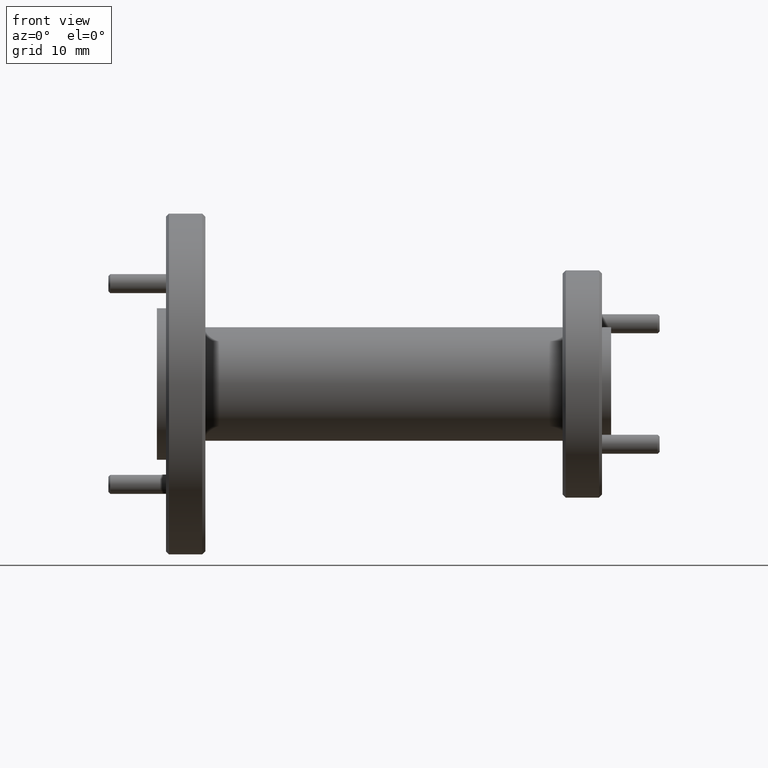
[diagram: clean part render]
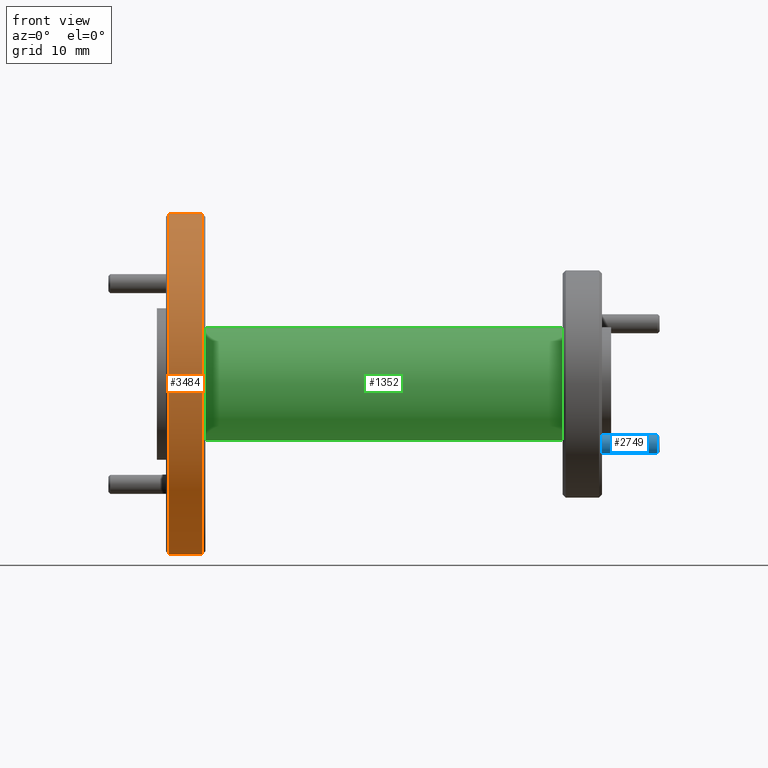
[diagram: same view with three faces highlighted in distinct colors, each labeled with its STEP entity id]
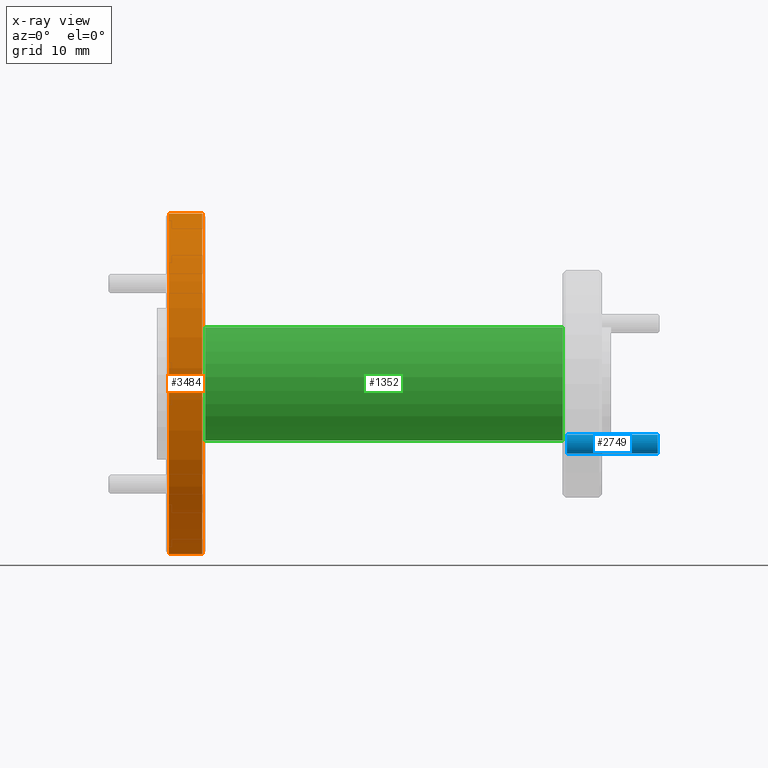
[diagram: x-ray of the same camera — body ghosted, the three highlighted faces saturated]
A machine part, front view with three faces highlighted in distinct colors.
The next image is the same camera in x-ray (body ghosted, the three faces saturated) — at least one of them is partly hidden behind the body in this view.
Their STEP definitions:

[orange] entity #3484 — the highlighted cylindrical surface (partial cylindrical patch) has radius 14.2875 mm, axis along (-1, -0, -0).
#7 = CARTESIAN_POINT ( 'NONE',  ( 0.0000000000000000000, 6.888638245203861900E-017, -0.5625000000000000000 ) ) ;
#212 = VERTEX_POINT ( 'NONE', #1261 ) ;
#372 = CARTESIAN_POINT ( 'NONE',  ( 0.1499999999999996600, 6.888638245203861900E-017, -0.5625000000000000000 ) ) ;
#544 = CARTESIAN_POINT ( 'NONE',  ( 0.1499999999999996600, 0.0000000000000000000, 0.0000000000000000000 ) ) ;
#596 = LINE ( 'NONE', #864, #2190 ) ;
#684 = CIRCLE ( 'NONE', #3072, 0.5625000000000000000 ) ;
#738 = AXIS2_PLACEMENT_3D ( 'NONE', #2415, #3305, #3044 ) ;
#850 = DIRECTION ( 'NONE',  ( -1.000000000000000000, -0.0000000000000000000, -0.0000000000000000000 ) ) ;
#864 = CARTESIAN_POINT ( 'NONE',  ( 0.0000000000000000000, 0.0000000000000000000, 0.5625000000000000000 ) ) ;
#957 = DIRECTION ( 'NONE',  ( -1.000000000000000000, -0.0000000000000000000, -0.0000000000000000000 ) ) ;
#971 = ORIENTED_EDGE ( 'NONE', *, *, #1183, .T. ) ;
#1027 = LINE ( 'NONE', #7, #1899 ) ;
#1125 = FACE_OUTER_BOUND ( 'NONE', #1342, .T. ) ;
#1183 = EDGE_CURVE ( 'NONE', #1629, #212, #2066, .T. ) ;
#1261 = CARTESIAN_POINT ( 'NONE',  ( 0.03999999999999970900, 6.888638245203861900E-017, -0.5625000000000000000 ) ) ;
#1342 = EDGE_LOOP ( 'NONE', ( #3731, #3023, #2675, #971 ) ) ;
#1589 = CARTESIAN_POINT ( 'NONE',  ( 0.03999999999999970900, 0.0000000000000000000, 0.0000000000000000000 ) ) ;
#1609 = VERTEX_POINT ( 'NONE', #2998 ) ;
#1629 = VERTEX_POINT ( 'NONE', #2744 ) ;
#1797 = CYLINDRICAL_SURFACE ( 'NONE', #738, 0.5625000000000000000 ) ;
#1899 = VECTOR ( 'NONE', #850, 39.37007874015748100 ) ;
#1906 = DIRECTION ( 'NONE',  ( 1.000000000000000000, 0.0000000000000000000, 0.0000000000000000000 ) ) ;
#1924 = DIRECTION ( 'NONE',  ( 0.0000000000000000000, 0.0000000000000000000, -1.000000000000000000 ) ) ;
#1988 = AXIS2_PLACEMENT_3D ( 'NONE', #1589, #1906, #1924 ) ;
#2066 = CIRCLE ( 'NONE', #1988, 0.5625000000000000000 ) ;
#2190 = VECTOR ( 'NONE', #957, 39.37007874015748100 ) ;
#2351 = EDGE_CURVE ( 'NONE', #1609, #1629, #596, .T. ) ;
#2362 = DIRECTION ( 'NONE',  ( -1.000000000000000000, -0.0000000000000000000, -0.0000000000000000000 ) ) ;
#2415 = CARTESIAN_POINT ( 'NONE',  ( 0.0000000000000000000, 0.0000000000000000000, 0.0000000000000000000 ) ) ;
#2675 = ORIENTED_EDGE ( 'NONE', *, *, #2351, .T. ) ;
#2744 = CARTESIAN_POINT ( 'NONE',  ( 0.03999999999999970900, 0.0000000000000000000, 0.5625000000000000000 ) ) ;
#2998 = CARTESIAN_POINT ( 'NONE',  ( 0.1499999999999996600, 0.0000000000000000000, 0.5625000000000000000 ) ) ;
#3023 = ORIENTED_EDGE ( 'NONE', *, *, #3055, .T. ) ;
#3044 = DIRECTION ( 'NONE',  ( 0.0000000000000000000, 0.0000000000000000000, 1.000000000000000000 ) ) ;
#3049 = DIRECTION ( 'NONE',  ( 0.0000000000000000000, 0.0000000000000000000, 1.000000000000000000 ) ) ;
#3055 = EDGE_CURVE ( 'NONE', #3288, #1609, #684, .T. ) ;
#3072 = AXIS2_PLACEMENT_3D ( 'NONE', #544, #2362, #3049 ) ;
#3288 = VERTEX_POINT ( 'NONE', #372 ) ;
#3305 = DIRECTION ( 'NONE',  ( -1.000000000000000000, -0.0000000000000000000, -0.0000000000000000000 ) ) ;
#3484 = ADVANCED_FACE ( 'NONE', ( #1125 ), #1797, .T. ) ;
#3731 = ORIENTED_EDGE ( 'NONE', *, *, #3936, .F. ) ;
#3936 = EDGE_CURVE ( 'NONE', #3288, #212, #1027, .T. ) ;

[blue] entity #2749 — the highlighted cylindrical surface (edge-blend (fillet) strip) has radius 0.7938 mm, axis along (1, -0, 0).
#13 = ORIENTED_EDGE ( 'NONE', *, *, #1671, .T. ) ;
#79 = VERTEX_POINT ( 'NONE', #440 ) ;
#98 = ORIENTED_EDGE ( 'NONE', *, *, #2773, .T. ) ;
#137 = CYLINDRICAL_SURFACE ( 'NONE', #2186, 0.03125000000000093000 ) ;
#205 = VERTEX_POINT ( 'NONE', #2175 ) ;
#440 = CARTESIAN_POINT ( 'NONE',  ( 1.653749999999998500, -0.1988737822087147400, -0.2301237822087212100 ) ) ;
#499 = CARTESIAN_POINT ( 'NONE',  ( 1.653749999999998500, -0.1988737822087148800, -0.1988737822087202600 ) ) ;
#514 = LINE ( 'NONE', #1558, #3118 ) ;
#791 = DIRECTION ( 'NONE',  ( 1.000000000000000000, -2.996702551964273500E-016, 5.818496234929241800E-016 ) ) ;
#874 = ORIENTED_EDGE ( 'NONE', *, *, #1820, .F. ) ;
#967 = EDGE_LOOP ( 'NONE', ( #874, #98, #13, #3746 ) ) ;
#1099 = DIRECTION ( 'NONE',  ( 0.0000000000000000000, 4.370956789862691000E-015, -1.000000000000000000 ) ) ;
#1306 = VERTEX_POINT ( 'NONE', #3535 ) ;
#1345 = CARTESIAN_POINT ( 'NONE',  ( 1.353750000000012000, -0.1988737822087114900, -0.1676237822087268100 ) ) ;
#1395 = CARTESIAN_POINT ( 'NONE',  ( 1.353750000000012000, -0.1988737822087133800, -0.1988737822087268400 ) ) ;
#1558 = CARTESIAN_POINT ( 'NONE',  ( 1.347500000000012600, -0.1988737822087114600, -0.1676237822087297300 ) ) ;
#1671 = EDGE_CURVE ( 'NONE', #205, #79, #1926, .T. ) ;
#1731 = AXIS2_PLACEMENT_3D ( 'NONE', #499, #3017, #3282 ) ;
#1820 = EDGE_CURVE ( 'NONE', #2019, #1306, #514, .T. ) ;
#1926 = LINE ( 'NONE', #2705, #2010 ) ;
#1990 = AXIS2_PLACEMENT_3D ( 'NONE', #1395, #791, #1099 ) ;
#2010 = VECTOR ( 'NONE', #3354, 39.37007874015748100 ) ;
#2019 = VERTEX_POINT ( 'NONE', #1345 ) ;
#2175 = CARTESIAN_POINT ( 'NONE',  ( 1.353750000000012000, -0.1988737822087132400, -0.2301237822087277600 ) ) ;
#2186 = AXIS2_PLACEMENT_3D ( 'NONE', #2318, #2609, #3500 ) ;
#2318 = CARTESIAN_POINT ( 'NONE',  ( 1.347500000000012600, -0.1988737822087113200, -0.1988737822087306400 ) ) ;
#2410 = CIRCLE ( 'NONE', #1990, 0.03125000000000093000 ) ;
#2467 = FACE_OUTER_BOUND ( 'NONE', #967, .T. ) ;
#2609 = DIRECTION ( 'NONE',  ( 1.000000000000000000, -2.996702551964273500E-016, 5.818496234929241800E-016 ) ) ;
#2705 = CARTESIAN_POINT ( 'NONE',  ( 1.347500000000012600, -0.1988737822087111900, -0.2301237822087315900 ) ) ;
#2709 = CIRCLE ( 'NONE', #1731, 0.03125000000000093000 ) ;
#2749 = ADVANCED_FACE ( 'NONE', ( #2467 ), #137, .T. ) ;
#2773 = EDGE_CURVE ( 'NONE', #2019, #205, #2410, .T. ) ;
#2856 = EDGE_CURVE ( 'NONE', #79, #1306, #2709, .T. ) ;
#3017 = DIRECTION ( 'NONE',  ( -1.000000000000000000, 2.996702551964273500E-016, -5.818496234929241800E-016 ) ) ;
#3118 = VECTOR ( 'NONE', #3389, 39.37007874015748100 ) ;
#3282 = DIRECTION ( 'NONE',  ( 0.0000000000000000000, 4.370956789862691000E-015, -1.000000000000000000 ) ) ;
#3354 = DIRECTION ( 'NONE',  ( 1.000000000000000000, -2.996702551964273500E-016, 5.818496234929241800E-016 ) ) ;
#3389 = DIRECTION ( 'NONE',  ( 1.000000000000000000, -2.996702551964273500E-016, 5.818496234929241800E-016 ) ) ;
#3500 = DIRECTION ( 'NONE',  ( 0.0000000000000000000, 4.370956789862691000E-015, -1.000000000000000000 ) ) ;
#3535 = CARTESIAN_POINT ( 'NONE',  ( 1.653749999999998500, -0.1988737822087114900, -0.1676237822087202600 ) ) ;
#3746 = ORIENTED_EDGE ( 'NONE', *, *, #2856, .T. ) ;

[green] entity #1352 — the highlighted cylindrical surface (partial cylindrical patch) has radius 4.7625 mm, axis along (-1, -0, -0).
#29 = DIRECTION ( 'NONE',  ( -1.000000000000000000, -0.0000000000000000000, -0.0000000000000000000 ) ) ;
#199 = LINE ( 'NONE', #1233, #2969 ) ;
#217 = EDGE_CURVE ( 'NONE', #3012, #1585, #2959, .T. ) ;
#488 = AXIS2_PLACEMENT_3D ( 'NONE', #642, #3700, #2798 ) ;
#642 = CARTESIAN_POINT ( 'NONE',  ( 1.340000000000000100, 0.0000000000000000000, 0.0000000000000000000 ) ) ;
#647 = ORIENTED_EDGE ( 'NONE', *, *, #1822, .T. ) ;
#671 = VECTOR ( 'NONE', #29, 39.37007874015748100 ) ;
#700 = EDGE_LOOP ( 'NONE', ( #3403, #3497, #647, #3011 ) ) ;
#964 = CARTESIAN_POINT ( 'NONE',  ( 0.0000000000000000000, 2.296212748401288000E-017, -0.1875000000000000600 ) ) ;
#1087 = DIRECTION ( 'NONE',  ( -1.000000000000000000, -0.0000000000000000000, -0.0000000000000000000 ) ) ;
#1127 = EDGE_CURVE ( 'NONE', #3012, #1817, #3935, .T. ) ;
#1212 = CYLINDRICAL_SURFACE ( 'NONE', #3241, 0.1875000000000000600 ) ;
#1233 = CARTESIAN_POINT ( 'NONE',  ( 0.0000000000000000000, 0.0000000000000000000, 0.1875000000000000600 ) ) ;
#1352 = ADVANCED_FACE ( 'NONE', ( #1881 ), #1212, .T. ) ;
#1370 = AXIS2_PLACEMENT_3D ( 'NONE', #3275, #3559, #2030 ) ;
#1390 = CARTESIAN_POINT ( 'NONE',  ( 0.0000000000000000000, 0.0000000000000000000, 0.0000000000000000000 ) ) ;
#1585 = VERTEX_POINT ( 'NONE', #3565 ) ;
#1817 = VERTEX_POINT ( 'NONE', #3697 ) ;
#1822 = EDGE_CURVE ( 'NONE', #1585, #2735, #199, .T. ) ;
#1881 = FACE_OUTER_BOUND ( 'NONE', #700, .T. ) ;
#2030 = DIRECTION ( 'NONE',  ( 0.0000000000000000000, 0.0000000000000000000, 1.000000000000000000 ) ) ;
#2082 = CARTESIAN_POINT ( 'NONE',  ( 1.340000000000000100, 2.296212748401288000E-017, -0.1875000000000000600 ) ) ;
#2233 = CARTESIAN_POINT ( 'NONE',  ( 0.1600000000000000600, 0.0000000000000000000, 0.1875000000000000600 ) ) ;
#2735 = VERTEX_POINT ( 'NONE', #2233 ) ;
#2785 = DIRECTION ( 'NONE',  ( -1.000000000000000000, -0.0000000000000000000, -0.0000000000000000000 ) ) ;
#2798 = DIRECTION ( 'NONE',  ( 0.0000000000000000000, 0.0000000000000000000, 1.000000000000000000 ) ) ;
#2959 = CIRCLE ( 'NONE', #488, 0.1875000000000000600 ) ;
#2969 = VECTOR ( 'NONE', #2785, 39.37007874015748100 ) ;
#3011 = ORIENTED_EDGE ( 'NONE', *, *, #3871, .F. ) ;
#3012 = VERTEX_POINT ( 'NONE', #2082 ) ;
#3139 = CIRCLE ( 'NONE', #1370, 0.1875000000000000600 ) ;
#3174 = DIRECTION ( 'NONE',  ( 0.0000000000000000000, 0.0000000000000000000, 1.000000000000000000 ) ) ;
#3241 = AXIS2_PLACEMENT_3D ( 'NONE', #1390, #1087, #3174 ) ;
#3275 = CARTESIAN_POINT ( 'NONE',  ( 0.1600000000000000600, 0.0000000000000000000, 0.0000000000000000000 ) ) ;
#3403 = ORIENTED_EDGE ( 'NONE', *, *, #1127, .F. ) ;
#3497 = ORIENTED_EDGE ( 'NONE', *, *, #217, .T. ) ;
#3559 = DIRECTION ( 'NONE',  ( -1.000000000000000000, -0.0000000000000000000, -0.0000000000000000000 ) ) ;
#3565 = CARTESIAN_POINT ( 'NONE',  ( 1.340000000000000100, 0.0000000000000000000, 0.1875000000000000600 ) ) ;
#3697 = CARTESIAN_POINT ( 'NONE',  ( 0.1600000000000000600, 2.296212748401288000E-017, -0.1875000000000000600 ) ) ;
#3700 = DIRECTION ( 'NONE',  ( -1.000000000000000000, -0.0000000000000000000, -0.0000000000000000000 ) ) ;
#3871 = EDGE_CURVE ( 'NONE', #1817, #2735, #3139, .T. ) ;
#3935 = LINE ( 'NONE', #964, #671 ) ;